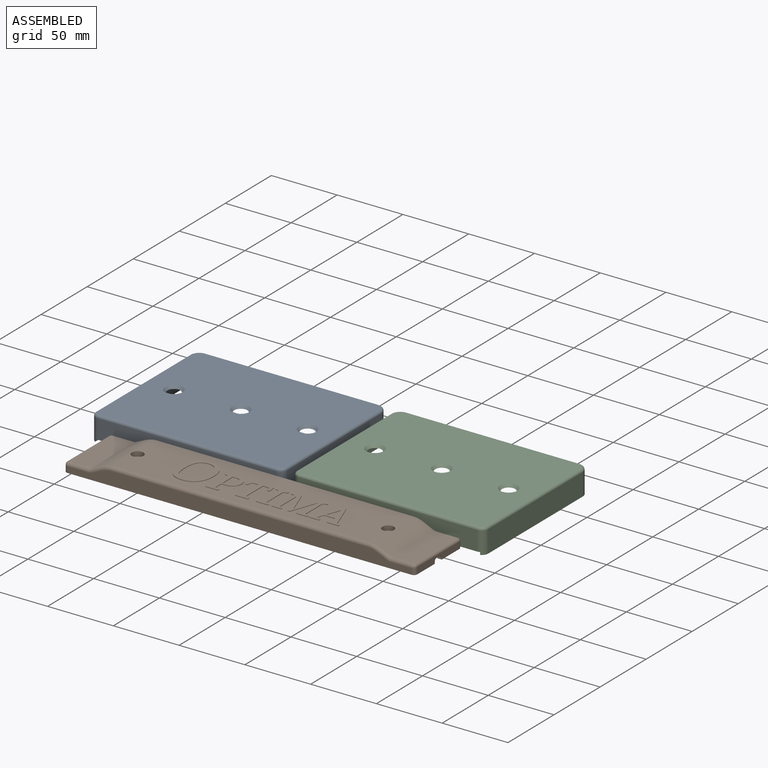
[diagram: assembled view]
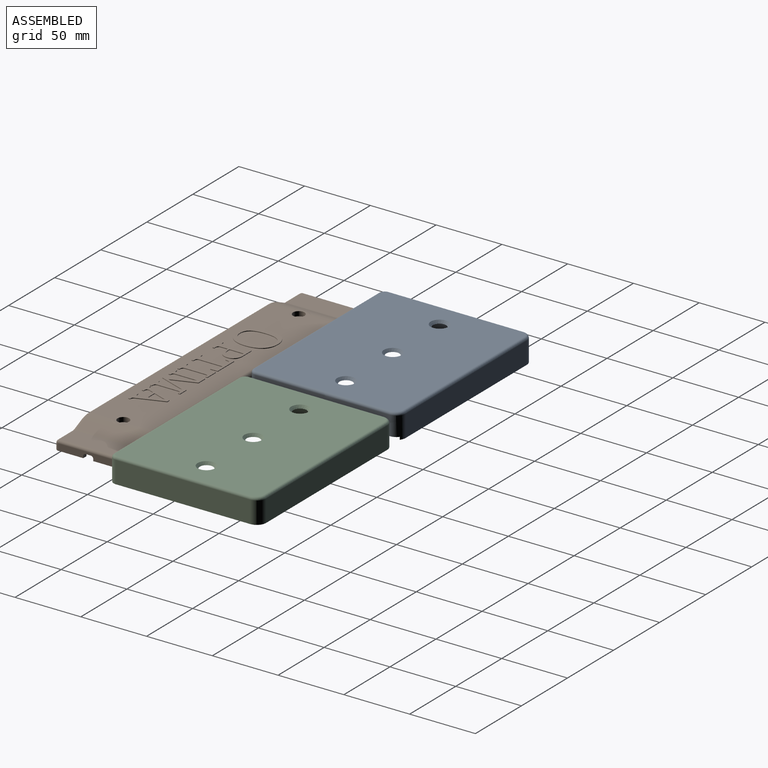
[diagram: assembled view, second angle]
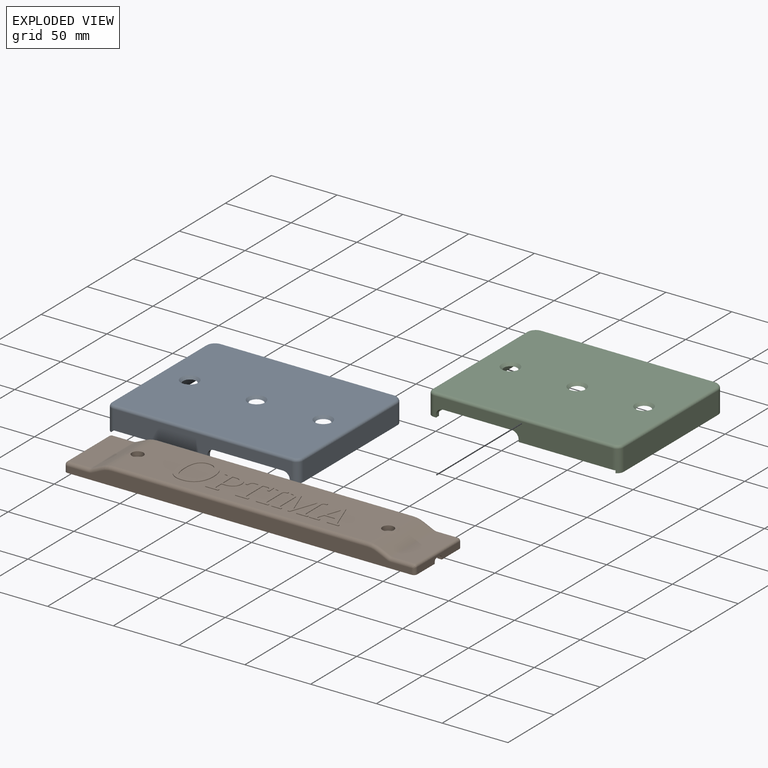
[diagram: exploded view]
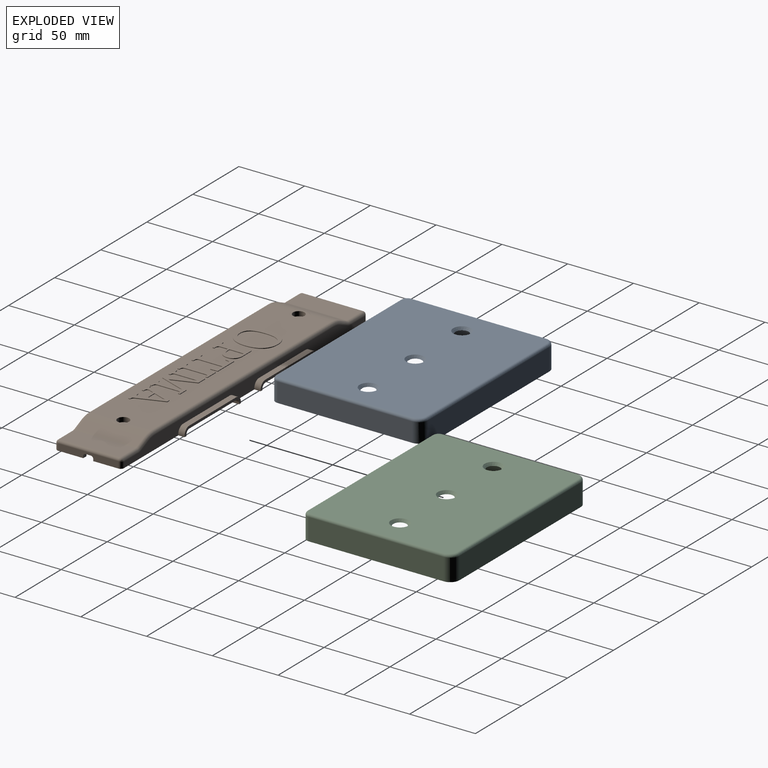
[diagram: exploded view, second angle]
ASSEMBLY  parts=3 mates=2
PART A: 46 faces, bbox 146.9x115.5x18.7 mm
  f0: plane 142.7x113mm, normal (0,0,-1), area 571.8mm2, adj f2,f4,f5,f9,f10,f13,f14,f15
  f1: plane 129.7x12.67mm, normal (0,1,0), area 1234.3mm2, adj f2,f8,f19,f23,f24,f25,f26,f34
  f2: cylinder r=5mm len=12.67mm, axis (0,0,1), area 93.4mm2, adj f0,f1,f14,f22,f24,f33
  f3: plane 102.39x16.67mm, normal (-1,0,0), area 1706.7mm2, adj f11,f18,f21,f40
  f4: plane 135.7x14.67mm, normal (0,-1,0), area 1575.8mm2, adj f0,f8,f20,f21,f22,f23,f24,f25
  f5: plane 102.39x14.67mm, normal (1,0,0), area 1501.9mm2, adj f0,f17,f20,f37
  f6: plane 131.48x16.67mm, normal (0,1,0), area 2191.5mm2, adj f11,f17,f18,f36
  f7: plane 141.7x110.5mm, normal (0,0,1), area 15214.2mm2, adj f35,f36,f37,f38,f39,f40,f41,f42
  f8: plane 73.41x8mm, normal (0,0,-1), area 225.3mm2, adj f1,f4,f10,f19,f21,f26
  f9: plane 139.96x2mm, normal (0,-1,0), area 279.9mm2, adj f0,f10,f11,f17
  f10: plane 112.58x14.67mm, normal (1,0,0), area 1455.9mm2, adj f0,f8,f9,f11,f15,f19,f21,f30
  f11: plane 142.96x114.08mm, normal (0,0,-1), area 535.4mm2, adj f3,f6,f9,f10,f17,f18,f21
  f12: plane 135.7x104.5mm, normal (0,0,-1), area 13932.6mm2, adj f27,f28,f29,f30,f31,f32,f33,f34
  f13: plane 127x12.67mm, normal (0,-1,0), area 1608.9mm2, adj f0,f15,f16,f27
  f14: plane 97.15x12.67mm, normal (-1,0,0), area 1230.8mm2, adj f0,f2,f16,f31
  f15: cylinder r=6.35mm len=12.67mm, axis (0,0,-1), area 126.4mm2, adj f0,f10,f13,f28
  f16: cylinder r=6.35mm len=12.67mm, axis (0,0,1), area 126.4mm2, adj f0,f13,f14,f29
  f17: cylinder r=7.11mm len=16.67mm, axis (0,0,-1), area 173.3mm2, adj f0,f5,f6,f9,f11,f35
  f18: cylinder r=7.11mm len=16.67mm, axis (0,0,1), area 186.2mm2, adj f3,f6,f11,f38
  f19: cylinder r=5mm len=12.67mm, axis (0,0,-1), area 99.5mm2, adj f1,f8,f10,f32
  f20: cylinder r=5mm len=14.67mm, axis (0,0,-1), area 115.2mm2, adj f0,f4,f5,f39
  f21: cylinder r=5mm len=16.67mm, axis (0,0,1), area 126.8mm2, adj f3,f4,f8,f10,f11,f42
  f22: plane 3.21x1.71mm, normal (-1,0,0), area 5.5mm2, adj f0,f2,f4,f24
  f23: cylinder r=5.08mm len=5.08mm, axis (0,-1,0), area 23.9mm2, adj f1,f4,f25,f26
  f24: cylinder r=5.08mm len=5.08mm, axis (0,-1,0), area 24.4mm2, adj f1,f2,f4,f22,f25
  f25: plane 52.58x3mm, normal (0,0,-1), area 157.7mm2, adj f1,f4,f23,f24
  f26: plane 3x1.71mm, normal (1,0,0), area 5.1mm2, adj f1,f4,f8,f23
  f27: cylinder r=2mm len=127mm, axis (-1,0,0), area 399mm2, adj f12,f13,f28,f29
  f28: torus R=4.35mm, axis (0,0,1), area 27.7mm2, adj f12,f15,f27,f30
  f29: torus R=4.35mm, axis (0,0,1), area 27.7mm2, adj f12,f16,f27,f31
  f30: cylinder r=2mm len=97.15mm, axis (0,1,0), area 305.2mm2, adj f10,f12,f28,f32
  f31: cylinder r=2mm len=97.15mm, axis (0,1,0), area 305.2mm2, adj f12,f14,f29,f33
  f32: torus R=3mm, axis (0,0,1), area 21.1mm2, adj f12,f19,f30,f34
  f33: torus R=3mm, axis (0,0,1), area 21.1mm2, adj f2,f12,f31,f34
  f34: cylinder r=2mm len=129.7mm, axis (1,0,0), area 407.5mm2, adj f1,f12,f32,f33
  f35: torus R=5.11mm, axis (0,0,1), area 31.5mm2, adj f7,f17,f36,f37
  f36: cylinder r=2mm len=131.48mm, axis (1,0,0), area 413mm2, adj f6,f7,f35,f38
  f37: cylinder r=2mm len=102.39mm, axis (0,-1,0), area 321.7mm2, adj f5,f7,f35,f39
  f38: torus R=5.11mm, axis (0,0,1), area 31.5mm2, adj f7,f18,f36,f40
  f39: torus R=3mm, axis (0,0,1), area 21.1mm2, adj f7,f20,f37,f41
  f40: cylinder r=2mm len=102.39mm, axis (0,1,0), area 321.7mm2, adj f3,f7,f38,f42
  f41: cylinder r=2mm len=135.7mm, axis (-1,0,0), area 426.3mm2, adj f4,f7,f39,f42
  f42: torus R=3mm, axis (0,0,1), area 21.1mm2, adj f7,f21,f40,f41
  f43: cone r=3.38mm half-angle=41deg, axis (0,0,1), area 97.8mm2, adj f7,f12
  f44: cone r=3.38mm half-angle=41deg, axis (0,0,1), area 97.8mm2, adj f7,f12
  f45: cone r=3.38mm half-angle=41deg, axis (0,0,1), area 97.8mm2, adj f7,f12
PART B: 334 faces, bbox 270.1x59x17.8 mm
  f0: plane 63.5x26.35mm, normal (0,0,-1), area 293.7mm2, adj f2,f3,f6,f32,f44,f73,f316,f317
  f1: plane 25.4x8.26mm, normal (0,0,-1), area 107.9mm2, adj f2,f3,f312,f321,f322,f323,f332,f333
  f2: plane 259.7x9.2mm, normal (0,-1,0), area 1687.1mm2, adj f0,f1,f5,f9,f23,f24,f25,f26
  f3: plane 261.62x10.16mm, normal (0,1,0), area 1677.2mm2, adj f0,f1,f5,f44,f46,f47,f48,f49
  f4: plane 203.28x49.12mm, normal (0,0,1), area 7292.1mm2, adj f8,f12,f37,f38,f41,f43,f50,f63
  f5: plane 63.5x26.35mm, normal (0,0,-1), area 293.7mm2, adj f2,f3,f17,f33,f56,f75,f327,f328
  f6: plane 45.72x5mm, normal (-1,0,0), area 204.9mm2, adj f0,f11,f16,f44,f57,f70,f71,f72
  f7: cylinder r=2.29mm len=9.18mm, axis (0,0,1), area 131.9mm2, adj f39,f42
  f8: cylinder r=20mm len=45.72mm, axis (0,1,0), area 337.4mm2, adj f4,f21,f43,f51,f64
  f9: cylinder r=20mm len=43.8mm, axis (0,1,0), area 321mm2, adj f2,f23,f26,f31,f40
  f10: cylinder r=2.29mm len=9.18mm, axis (0,0,1), area 131.9mm2, adj f34,f36
  f11: plane 266.7x21.59mm, normal (0,0,-1), area 1057.3mm2, adj f6,f17,f22,f31,f32,f33,f57,f69
  f12: cylinder r=20mm len=45.72mm, axis (0,1,0), area 337.4mm2, adj f4,f13,f38,f49,f62
  f13: plane 45.72x7.49mm, normal (-0.42,0,0.91), area 376.6mm2, adj f12,f14,f48,f61
  f14: cylinder r=5mm len=45.72mm, axis (0,1,0), area 98.2mm2, adj f13,f15,f47,f60
  f15: plane 45.72x16.21mm, normal (0,0,1), area 741.3mm2, adj f14,f16,f46,f59
  f16: cylinder r=2mm len=45.72mm, axis (0,1,0), area 143.6mm2, adj f6,f15,f45,f58
  f17: plane 45.72x5mm, normal (1,0,0), area 204.9mm2, adj f5,f11,f18,f56,f69,f75,f76,f77
  f18: cylinder r=2mm len=45.72mm, axis (0,1,0), area 143.6mm2, adj f17,f19,f55,f68
  f19: plane 45.72x16.21mm, normal (0,0,1), area 741.3mm2, adj f18,f20,f54,f67
  f20: cylinder r=5mm len=45.72mm, axis (0,1,0), area 98.2mm2, adj f19,f21,f53,f66
  f21: plane 45.72x7.49mm, normal (0.42,0,0.91), area 376.6mm2, adj f8,f20,f52,f65
  f22: plane 261.62x10.16mm, normal (0,-1,0), area 2388mm2, adj f11,f57,f59,f60,f61,f62,f63,f64
  f23: plane 194.48x43.8mm, normal (0,0,-1), area 8294.1mm2, adj f2,f9,f24,f31,f35,f40
  f24: cylinder r=20mm len=43.8mm, axis (0,1,0), area 321mm2, adj f2,f23,f25,f31,f35
  f25: plane 43.8x7.49mm, normal (0.42,0,-0.91), area 360.8mm2, adj f2,f24,f27,f31
  f26: plane 43.8x7.49mm, normal (-0.42,0,-0.91), area 360.8mm2, adj f2,f9,f28,f31
  f27: cylinder r=5mm len=43.8mm, axis (0,1,0), area 94.1mm2, adj f2,f25,f29,f31
  f28: cylinder r=5mm len=43.8mm, axis (0,1,0), area 94.1mm2, adj f2,f26,f30,f31
  f29: plane 43.8x14.71mm, normal (0,0,-1), area 644.5mm2, adj f2,f27,f31,f32
  f30: plane 43.8x14.71mm, normal (0,0,-1), area 644.5mm2, adj f2,f28,f31,f33
  f31: plane 259.7x9.2mm, normal (0,1,0), area 2135.6mm2, adj f9,f11,f23,f24,f25,f26,f27,f28
  f32: plane 43.8x3.5mm, normal (1,0,0), area 129.6mm2, adj f0,f2,f11,f29,f31,f70,f71,f72
  f33: plane 43.8x3.5mm, normal (-1,0,0), area 129.6mm2, adj f2,f5,f11,f30,f31,f75,f76,f77
  f34: plane 14.57x14.57mm, normal (0,0,-1), area 150.4mm2, adj f10,f35
  f35: cylinder r=7.29mm len=14.57mm, axis (0,0,1), area 421.2mm2, adj f23,f24,f34
  f36: plane 8.76x8.76mm, normal (0,0,1), area 43.9mm2, adj f10,f37
  f37: cylinder r=4.38mm len=8.76mm, axis (0,0,1), area 96.9mm2, adj f4,f36
  f38: bspline ~14.02x5.3mm, area 0mm2, adj f4,f12
  f39: plane 14.57x14.57mm, normal (0,0,-1), area 150.4mm2, adj f7,f40
  f40: cylinder r=7.29mm len=14.57mm, axis (0,0,1), area 421.2mm2, adj f9,f23,f39
  f41: cylinder r=4.38mm len=8.76mm, axis (0,0,1), area 96.9mm2, adj f4,f42
  f42: plane 8.76x8.76mm, normal (0,0,1), area 43.9mm2, adj f7,f41
  f43: bspline ~14.02x5.31mm, area 0mm2, adj f4,f8
  f44: cylinder r=2.54mm len=5mm, axis (0,0,-1), area 18.9mm2, adj f0,f3,f6,f45
  f45: bspline ~2.69x2.54mm, area 5.5mm2, adj f16,f44,f46
  f46: cylinder r=2.54mm len=16.21mm, axis (-1,0,0), area 63.6mm2, adj f3,f15,f45,f47
  f47: torus R=7.54mm, axis (0,-1,0), area 10.1mm2, adj f3,f14,f46,f48
  f48: cylinder r=2.54mm len=8.55mm, axis (-0.91,0,-0.42), area 32.9mm2, adj f3,f13,f47,f49
  f49: torus R=17.46mm, axis (0,-1,0), area 32.7mm2, adj f3,f12,f48,f50
  f50: cylinder r=2.54mm len=194.48mm, axis (-1,0,0), area 775.9mm2, adj f3,f4,f49,f51
  f51: torus R=17.46mm, axis (0,-1,0), area 32.7mm2, adj f3,f8,f50,f52
  f52: cylinder r=2.54mm len=8.55mm, axis (-0.91,0,0.42), area 32.9mm2, adj f3,f21,f51,f53
  f53: torus R=7.54mm, axis (0,-1,0), area 10.1mm2, adj f3,f20,f52,f54
  f54: cylinder r=2.54mm len=16.21mm, axis (-1,0,0), area 63.6mm2, adj f3,f19,f53,f55
  f55: bspline ~2.69x2.54mm, area 5.5mm2, adj f18,f54,f56
  f56: cylinder r=2.54mm len=5mm, axis (0,0,1), area 18.9mm2, adj f3,f5,f17,f55
  f57: cylinder r=2.54mm len=5mm, axis (0,0,1), area 18.9mm2, adj f6,f11,f22,f58
  f58: bspline ~2.69x2.54mm, area 5.5mm2, adj f16,f57,f59
  f59: cylinder r=2.54mm len=16.21mm, axis (1,0,0), area 63.6mm2, adj f15,f22,f58,f60
  f60: torus R=7.54mm, axis (0,-1,0), area 10.1mm2, adj f14,f22,f59,f61
  f61: cylinder r=2.54mm len=8.55mm, axis (0.91,0,0.42), area 32.9mm2, adj f13,f22,f60,f62
  f62: torus R=17.46mm, axis (0,-1,0), area 32.7mm2, adj f12,f22,f61,f63
  f63: cylinder r=2.54mm len=194.48mm, axis (1,0,0), area 775.9mm2, adj f4,f22,f62,f64
  f64: torus R=17.46mm, axis (0,-1,0), area 32.7mm2, adj f8,f22,f63,f65
  f65: cylinder r=2.54mm len=8.55mm, axis (0.91,0,-0.42), area 32.9mm2, adj f21,f22,f64,f66
  f66: torus R=7.54mm, axis (0,-1,0), area 10.1mm2, adj f20,f22,f65,f67
  f67: cylinder r=2.54mm len=16.21mm, axis (1,0,0), area 63.6mm2, adj f19,f22,f66,f68
  f68: bspline ~2.69x2.54mm, area 5.5mm2, adj f18,f67,f69
  f69: cylinder r=2.54mm len=5mm, axis (0,0,-1), area 18.9mm2, adj f11,f17,f22,f68
  f70: plane 3.5x1.43mm, normal (0,1,0), area 5mm2, adj f6,f11,f32,f71
  f71: cylinder r=1.87mm len=3.5mm, axis (-1,0,0), area 10.3mm2, adj f6,f32,f70,f72
  f72: plane 3.88x3.5mm, normal (0,0,-1), area 13.6mm2, adj f6,f32,f71,f74
  f73: plane 3.5x1.43mm, normal (0,-1,0), area 5mm2, adj f0,f6,f32,f74
  f74: cylinder r=1.87mm len=3.5mm, axis (-1,0,0), area 10.3mm2, adj f6,f32,f72,f73
  f75: plane 3.5x1.43mm, normal (0,-1,0), area 5mm2, adj f5,f17,f33,f76
  f76: cylinder r=1.87mm len=3.5mm, axis (1,0,0), area 10.3mm2, adj f17,f33,f75,f77
  f77: plane 3.88x3.5mm, normal (0,0,-1), area 13.6mm2, adj f17,f33,f76,f78
  f78: cylinder r=1.87mm len=3.5mm, axis (1,0,0), area 10.3mm2, adj f17,f33,f77,f79
  f79: plane 3.5x1.43mm, normal (0,1,0), area 5mm2, adj f11,f17,f33,f78
  f80: extruded ~5.61x0.5mm, area 2.8mm2, adj f81,f111,f112,f113
  f81: extruded ~5.61x0.5mm, area 2.8mm2, adj f80,f82,f112,f113
  f82: extruded ~4.16x1.51mm, area 2.2mm2, adj f81,f83,f112,f113
  f83: extruded ~2.7x2.58mm, area 1.9mm2, adj f82,f84,f112,f113
  f84: extruded ~4.01x0.89mm, area 2.1mm2, adj f83,f85,f112,f113
  f85: extruded ~3.98x0.89mm, area 2.1mm2, adj f84,f86,f112,f113
  f86: extruded ~2.65x2.58mm, area 1.9mm2, adj f85,f87,f112,f113
  f87: extruded ~4.16x1.48mm, area 2.2mm2, adj f86,f88,f112,f113
  f88: extruded ~5.61x0.5mm, area 2.8mm2, adj f87,f89,f112,f113
  f89: extruded ~5.61x0.5mm, area 2.8mm2, adj f88,f90,f112,f113
  f90: extruded ~4.18x1.48mm, area 2.2mm2, adj f89,f91,f112,f113
  f91: extruded ~2.67x2.61mm, area 1.9mm2, adj f90,f92,f112,f113
  f92: extruded ~4x0.9mm, area 2.1mm2, adj f91,f93,f112,f113
  f93: extruded ~4x0.9mm, area 2.1mm2, adj f92,f94,f112,f113
  f94: extruded ~2.68x2.61mm, area 1.9mm2, adj f93,f111,f112,f113
  f95: extruded ~6.37x0.87mm, area 3.2mm2, adj f4,f96,f110,f112
  f96: extruded ~6.4x0.87mm, area 3.2mm2, adj f4,f95,f97,f112
  f97: extruded ~4.9x2.56mm, area 2.8mm2, adj f4,f96,f98,f112
  f98: extruded ~4.15x3.14mm, area 2.6mm2, adj f4,f97,f99,f112
  f99: extruded ~5.67x1.11mm, area 2.9mm2, adj f4,f98,f100,f112
  f100: extruded ~5.89x1.11mm, area 3mm2, adj f4,f99,f101,f112
  f101: extruded ~4.18x3.13mm, area 2.6mm2, adj f4,f100,f102,f112
  f102: extruded ~4.89x2.48mm, area 2.8mm2, adj f4,f101,f103,f112
  f103: extruded ~6.38x0.83mm, area 3.2mm2, adj f4,f102,f104,f112
  f104: extruded ~6.4x0.83mm, area 3.2mm2, adj f4,f103,f105,f112
  f105: extruded ~4.93x2.48mm, area 2.8mm2, adj f4,f104,f106,f112
  f106: extruded ~4.16x3.17mm, area 2.6mm2, adj f4,f105,f107,f112
  f107: extruded ~5.87x1.12mm, area 3mm2, adj f4,f106,f108,f112
  f108: extruded ~5.68x1.12mm, area 2.9mm2, adj f4,f107,f109,f112
  f109: extruded ~4.18x3.17mm, area 2.6mm2, adj f4,f108,f110,f112
  f110: extruded ~4.92x2.56mm, area 2.8mm2, adj f4,f95,f109,f112
  f111: extruded ~4.18x1.5mm, area 2.2mm2, adj f80,f94,f112,f113
  f112: plane 31.12x26.62mm, normal (0,0,1), area 294.2mm2, adj f80,f81,f82,f83,f84,f85,f86,f87
  f113: plane 26.54x17.24mm, normal (0,0,1), area 384.1mm2, adj f80,f81,f82,f83,f84,f85,f86,f87
  f114: plane 1.69x0.5mm, normal (0,1,0), area 0.8mm2, adj f115,f155,f156,f157
  f115: plane 10.82x0.5mm, normal (1,0,0), area 5.4mm2, adj f114,f116,f156,f157
  f116: plane 2.15x0.5mm, normal (0,-1,0), area 1.1mm2, adj f115,f117,f156,f157
  f117: extruded ~2.29x0.5mm, area 1.2mm2, adj f116,f118,f156,f157
  f118: extruded ~1.53x0.97mm, area 0.9mm2, adj f117,f119,f156,f157
  f119: extruded ~1.63x0.85mm, area 0.9mm2, adj f118,f120,f156,f157
  f120: extruded ~2.32x0.5mm, area 1.2mm2, adj f119,f121,f156,f157
  f121: extruded ~2.57x0.5mm, area 1.3mm2, adj f120,f122,f156,f157
  f122: extruded ~1.74x0.95mm, area 1mm2, adj f121,f123,f156,f157
  f123: extruded ~1.67x0.98mm, area 1mm2, adj f122,f155,f156,f157
  f124: plane 1.33x0.5mm, normal (-1,0,0), area 0.7mm2, adj f4,f125,f154,f156
  f125: plane 9.87x0.5mm, normal (0,-1,0), area 4.9mm2, adj f4,f124,f126,f156
  f126: plane 1.33x0.5mm, normal (1,0,0), area 0.7mm2, adj f4,f125,f127,f156
  f127: plane 1.05x0.5mm, normal (0,1,0), area 0.5mm2, adj f4,f126,f128,f156
  f128: extruded ~1x0.5mm, area 0.5mm2, adj f4,f127,f129,f156
  f129: extruded ~0.83x0.5mm, area 0.4mm2, adj f4,f128,f130,f156
  f130: extruded ~0.64x0.57mm, area 0.4mm2, adj f4,f129,f131,f156
  f131: extruded ~1.13x0.5mm, area 0.6mm2, adj f4,f130,f132,f156
  f132: plane 5.36x0.5mm, normal (1,0,0), area 2.7mm2, adj f4,f131,f133,f156
  f133: plane 2x0.5mm, normal (0,-1,0), area 1mm2, adj f4,f132,f134,f156
  f134: extruded ~3.98x0.6mm, area 2mm2, adj f4,f133,f135,f156
  f135: extruded ~2.64x1.6mm, area 1.6mm2, adj f4,f134,f136,f156
  f136: extruded ~2.3x1.45mm, area 1.4mm2, adj f4,f135,f137,f156
  f137: extruded ~2.71x0.5mm, area 1.4mm2, adj f4,f136,f138,f156
  f138: extruded ~2.78x0.5mm, area 1.4mm2, adj f4,f137,f139,f156
  f139: extruded ~2.08x1.43mm, area 1.3mm2, adj f4,f138,f140,f156
  f140: extruded ~2.43x1.32mm, area 1.4mm2, adj f4,f139,f141,f156
  f141: extruded ~3.47x0.5mm, area 1.8mm2, adj f4,f140,f142,f156
  f142: plane 8.92x0.5mm, normal (0,1,0), area 4.5mm2, adj f4,f141,f143,f156
  f143: plane 1.33x0.5mm, normal (-1,0,0), area 0.7mm2, adj f4,f142,f144,f156
  f144: plane 0.5x0.4mm, normal (0,-1,0), area 0.2mm2, adj f4,f143,f145,f156
  f145: extruded ~1x0.5mm, area 0.5mm2, adj f4,f144,f146,f156
  f146: extruded ~0.83x0.5mm, area 0.4mm2, adj f4,f145,f147,f156
  f147: extruded ~0.66x0.57mm, area 0.4mm2, adj f4,f146,f148,f156
  f148: extruded ~1.12x0.5mm, area 0.6mm2, adj f4,f147,f149,f156
  f149: plane 15.57x0.5mm, normal (-1,0,0), area 7.8mm2, adj f4,f148,f150,f156
  f150: extruded ~1.19x0.5mm, area 0.6mm2, adj f4,f149,f151,f156
  f151: extruded ~0.69x0.56mm, area 0.4mm2, adj f4,f150,f152,f156
  f152: extruded ~0.83x0.5mm, area 0.4mm2, adj f4,f151,f153,f156
  f153: extruded ~1.01x0.5mm, area 0.5mm2, adj f4,f152,f154,f156
  f154: plane 0.5x0.4mm, normal (0,1,0), area 0.2mm2, adj f4,f124,f153,f156
  f155: extruded ~2.46x0.5mm, area 1.2mm2, adj f114,f123,f156,f157
  f156: plane 22.67x16.73mm, normal (0,0,1), area 145.4mm2, adj f114,f115,f116,f117,f118,f119,f120,f121
  f157: plane 10.82x7.08mm, normal (0,0,1), area 68.3mm2, adj f114,f115,f116,f117,f118,f119,f120,f121
  f158: extruded ~1.19x0.5mm, area 0.6mm2, adj f4,f159,f189,f190
  f159: plane 17.47x0.5mm, normal (1,0,0), area 8.7mm2, adj f4,f158,f160,f190
  f160: plane 3.09x0.5mm, normal (0,-1,0), area 1.5mm2, adj f4,f159,f161,f190
  f161: extruded ~1.2x0.5mm, area 0.6mm2, adj f4,f160,f162,f190
  f162: extruded ~0.77x0.57mm, area 0.5mm2, adj f4,f161,f163,f190
  f163: extruded ~0.83x0.5mm, area 0.5mm2, adj f4,f162,f164,f190
  f164: extruded ~1x0.5mm, area 0.5mm2, adj f4,f163,f165,f190
  f165: plane 1.36x0.5mm, normal (-0.99,-0.12,0), area 0.7mm2, adj f4,f164,f166,f190
  f166: plane 1.64x0.5mm, normal (0,-1,0), area 0.8mm2, adj f4,f165,f167,f190
  f167: plane 5.55x0.5mm, normal (1,0.03,0), area 2.8mm2, adj f4,f166,f168,f190
  f168: plane 17.88x0.5mm, normal (0,1,0), area 8.9mm2, adj f4,f167,f169,f190
  f169: plane 5.55x0.5mm, normal (-1,0.03,0), area 2.8mm2, adj f4,f168,f170,f190
  f170: plane 1.64x0.5mm, normal (0,-1,0), area 0.8mm2, adj f4,f169,f171,f190
  f171: plane 1.36x0.5mm, normal (0.99,-0.13,0), area 0.7mm2, adj f4,f170,f172,f190
  f172: extruded ~1x0.5mm, area 0.5mm2, adj f4,f171,f173,f190
  f173: extruded ~0.83x0.5mm, area 0.5mm2, adj f4,f172,f174,f190
  f174: extruded ~0.77x0.57mm, area 0.5mm2, adj f4,f173,f175,f190
  f175: extruded ~1.17x0.5mm, area 0.6mm2, adj f4,f174,f176,f190
  f176: plane 3.04x0.5mm, normal (0,-1,0), area 1.5mm2, adj f4,f175,f177,f190
  f177: plane 17.63x0.5mm, normal (-1,0,0), area 8.8mm2, adj f4,f176,f178,f190
  f178: extruded ~1.13x0.5mm, area 0.6mm2, adj f4,f177,f179,f190
  f179: extruded ~0.64x0.57mm, area 0.4mm2, adj f4,f178,f180,f190
  f180: extruded ~0.83x0.5mm, area 0.4mm2, adj f4,f179,f181,f190
  f181: extruded ~1x0.5mm, area 0.5mm2, adj f4,f180,f182,f190
  f182: plane 0.73x0.5mm, normal (0,1,0), area 0.4mm2, adj f4,f181,f183,f190
  f183: plane 1.33x0.5mm, normal (-1,0,0), area 0.7mm2, adj f4,f182,f184,f190
  f184: plane 9.88x0.5mm, normal (0,-1,0), area 4.9mm2, adj f4,f183,f185,f190
  f185: plane 1.33x0.5mm, normal (1,0,0), area 0.7mm2, adj f4,f184,f186,f190
  f186: plane 0.73x0.5mm, normal (0,1,0), area 0.4mm2, adj f4,f185,f187,f190
  f187: extruded ~1.01x0.5mm, area 0.5mm2, adj f4,f186,f188,f190
  f188: extruded ~0.83x0.5mm, area 0.4mm2, adj f4,f187,f189,f190
  f189: extruded ~0.69x0.56mm, area 0.4mm2, adj f4,f158,f188,f190
  f190: plane 22.67x18.19mm, normal (0,0,1), area 123mm2, adj f158,f159,f160,f161,f162,f163,f164,f165
  f191: plane 1.33x0.5mm, normal (-1,0,0), area 0.7mm2, adj f4,f192,f218,f219
  f192: plane 9.24x0.5mm, normal (0,-1,0), area 4.6mm2, adj f4,f191,f193,f219
  f193: plane 1.33x0.5mm, normal (1,0,0), area 0.7mm2, adj f4,f192,f194,f219
  f194: plane 0.5x0.42mm, normal (0,1,0), area 0.2mm2, adj f4,f193,f195,f219
  f195: extruded ~1.01x0.5mm, area 0.5mm2, adj f4,f194,f196,f219
  f196: extruded ~0.83x0.5mm, area 0.4mm2, adj f4,f195,f197,f219
  f197: extruded ~0.69x0.56mm, area 0.4mm2, adj f4,f196,f198,f219
  f198: extruded ~1.19x0.5mm, area 0.6mm2, adj f4,f197,f199,f219
  f199: plane 15.44x0.5mm, normal (1,0,0), area 7.7mm2, adj f4,f198,f200,f219
  f200: extruded ~1.19x0.5mm, area 0.6mm2, adj f4,f199,f201,f219
  f201: extruded ~0.69x0.56mm, area 0.4mm2, adj f4,f200,f202,f219
  f202: extruded ~0.83x0.5mm, area 0.4mm2, adj f4,f201,f203,f219
  f203: extruded ~1.01x0.5mm, area 0.5mm2, adj f4,f202,f204,f219
  f204: plane 0.5x0.42mm, normal (0,-1,0), area 0.2mm2, adj f4,f203,f205,f219
  f205: plane 1.33x0.5mm, normal (1,0,0), area 0.7mm2, adj f4,f204,f206,f219
  f206: plane 9.24x0.5mm, normal (0,1,0), area 4.6mm2, adj f4,f205,f207,f219
  f207: plane 1.33x0.5mm, normal (-1,0,0), area 0.7mm2, adj f4,f206,f208,f219
  f208: plane 0.5x0.4mm, normal (0,-1,0), area 0.2mm2, adj f4,f207,f209,f219
  f209: extruded ~1.01x0.5mm, area 0.5mm2, adj f4,f208,f210,f219
  f210: extruded ~0.83x0.5mm, area 0.4mm2, adj f4,f209,f211,f219
  f211: extruded ~0.69x0.56mm, area 0.4mm2, adj f4,f210,f212,f219
  f212: extruded ~1.19x0.5mm, area 0.6mm2, adj f4,f211,f213,f219
  f213: plane 15.44x0.5mm, normal (-1,0,0), area 7.7mm2, adj f4,f212,f214,f219
  f214: extruded ~1.19x0.5mm, area 0.6mm2, adj f4,f213,f215,f219
  f215: extruded ~0.69x0.56mm, area 0.4mm2, adj f4,f214,f216,f219
  f216: extruded ~0.83x0.5mm, area 0.4mm2, adj f4,f215,f217,f219
  f217: extruded ~1.01x0.5mm, area 0.5mm2, adj f4,f216,f218,f219
  f218: plane 0.5x0.4mm, normal (0,1,0), area 0.2mm2, adj f4,f191,f217,f219
  f219: plane 22.67x9.24mm, normal (0,0,1), area 92.3mm2, adj f191,f192,f193,f194,f195,f196,f197,f198
  f220: plane 1.33x0.5mm, normal (-1,0,0), area 0.7mm2, adj f4,f221,f268,f269
  f221: plane 8.45x0.5mm, normal (0,-1,0), area 4.2mm2, adj f4,f220,f222,f269
  f222: plane 1.33x0.5mm, normal (1,0,0), area 0.7mm2, adj f4,f221,f223,f269
  f223: plane 0.5x0.4mm, normal (0,1,0), area 0.2mm2, adj f4,f222,f224,f269
  f224: extruded ~1.01x0.5mm, area 0.5mm2, adj f4,f223,f225,f269
  f225: extruded ~0.83x0.5mm, area 0.4mm2, adj f4,f224,f226,f269
  f226: extruded ~0.69x0.56mm, area 0.4mm2, adj f4,f225,f227,f269
  f227: extruded ~1.19x0.5mm, area 0.6mm2, adj f4,f226,f228,f269
  f228: plane 15.44x0.5mm, normal (1,0,0), area 7.7mm2, adj f4,f227,f229,f269
  f229: extruded ~1.19x0.5mm, area 0.6mm2, adj f4,f228,f230,f269
  f230: extruded ~0.69x0.56mm, area 0.4mm2, adj f4,f229,f231,f269
  f231: extruded ~0.83x0.5mm, area 0.4mm2, adj f4,f230,f232,f269
  f232: extruded ~1.01x0.5mm, area 0.5mm2, adj f4,f231,f233,f269
  f233: plane 0.5x0.4mm, normal (0,-1,0), area 0.2mm2, adj f4,f232,f234,f269
  f234: plane 1.33x0.5mm, normal (1,0,0), area 0.7mm2, adj f4,f233,f235,f269
  f235: plane 7.03x0.5mm, normal (0,1,0), area 3.5mm2, adj f4,f234,f236,f269
  f236: plane 18.16x6.51mm, normal (-0.94,0.34,0), area 9.6mm2, adj f4,f235,f237,f269
  f237: plane 18.16x6.57mm, normal (0.94,0.34,0), area 9.7mm2, adj f4,f236,f238,f269
  f238: plane 7.24x0.5mm, normal (0,1,0), area 3.6mm2, adj f4,f237,f239,f269
  f239: plane 1.33x0.5mm, normal (-1,0,0), area 0.7mm2, adj f4,f238,f240,f269
  f240: plane 0.5x0.4mm, normal (0,-1,0), area 0.2mm2, adj f4,f239,f241,f269
  f241: extruded ~1x0.5mm, area 0.5mm2, adj f4,f240,f242,f269
  f242: extruded ~0.83x0.5mm, area 0.4mm2, adj f4,f241,f243,f269
  f243: extruded ~0.66x0.57mm, area 0.4mm2, adj f4,f242,f244,f269
  f244: extruded ~1.12x0.5mm, area 0.6mm2, adj f4,f243,f245,f269
  f245: plane 15.72x0.5mm, normal (-1,0,0), area 7.9mm2, adj f4,f244,f246,f269
  f246: extruded ~1.13x0.5mm, area 0.6mm2, adj f4,f245,f247,f269
  f247: extruded ~0.64x0.57mm, area 0.4mm2, adj f4,f246,f248,f269
  f248: extruded ~0.83x0.5mm, area 0.4mm2, adj f4,f247,f249,f269
  f249: extruded ~1x0.5mm, area 0.5mm2, adj f4,f248,f250,f269
  f250: plane 0.5x0.4mm, normal (0,1,0), area 0.2mm2, adj f4,f249,f251,f269
  f251: plane 1.33x0.5mm, normal (-1,0,0), area 0.7mm2, adj f4,f250,f252,f269
  f252: plane 7.33x0.5mm, normal (0,-1,0), area 3.7mm2, adj f4,f251,f253,f269
  f253: plane 1.33x0.5mm, normal (1,0,0), area 0.7mm2, adj f4,f252,f254,f269
  f254: plane 0.5x0.09mm, normal (0,1,0), area 0mm2, adj f4,f253,f255,f269
  f255: extruded ~0.95x0.5mm, area 0.5mm2, adj f4,f254,f256,f269
  f256: extruded ~0.73x0.5mm, area 0.4mm2, adj f4,f255,f257,f269
  f257: extruded ~0.69x0.5mm, area 0.4mm2, adj f4,f256,f258,f269
  f258: extruded ~1.19x0.5mm, area 0.6mm2, adj f4,f257,f259,f269
  f259: plane 16.62x0.5mm, normal (1,0,0), area 8.3mm2, adj f4,f258,f260,f269
  f260: plane 20.23x7.36mm, normal (-0.94,-0.34,0), area 10.8mm2, adj f4,f259,f261,f269
  f261: plane 1.72x0.5mm, normal (0,-1,0), area 0.9mm2, adj f4,f260,f262,f269
  f262: plane 20.3x7.27mm, normal (0.94,-0.34,0), area 10.8mm2, adj f4,f261,f263,f269
  f263: plane 16.96x0.5mm, normal (-1,0,0), area 8.5mm2, adj f4,f262,f264,f269
  f264: extruded ~1.05x0.5mm, area 0.5mm2, adj f4,f263,f265,f269
  f265: extruded ~0.61x0.5mm, area 0.4mm2, adj f4,f264,f266,f269
  f266: extruded ~0.7x0.5mm, area 0.4mm2, adj f4,f265,f267,f269
  f267: extruded ~0.92x0.5mm, area 0.5mm2, adj f4,f266,f268,f269
  f268: plane 0.5x0.11mm, normal (0,1,0), area 0.1mm2, adj f4,f220,f267,f269
  f269: plane 27.36x22.67mm, normal (0,0,1), area 243.9mm2, adj f220,f221,f222,f223,f224,f225,f226,f227
  f270: extruded ~2.64x0.91mm, area 1.4mm2, adj f271,f309,f310,f311
  f271: plane 5.55x1.96mm, normal (-0.94,-0.33,0), area 2.9mm2, adj f270,f272,f310,f311
  f272: plane 7.16x0.5mm, normal (0,1,0), area 3.6mm2, adj f271,f273,f310,f311
  f273: plane 5.84x2.15mm, normal (0.94,-0.35,0), area 3.1mm2, adj f272,f274,f310,f311
  f274: extruded ~1.36x0.5mm, area 0.7mm2, adj f273,f275,f310,f311
  f275: extruded ~1.17x0.5mm, area 0.6mm2, adj f274,f276,f310,f311
  f276: extruded ~1.09x0.5mm, area 0.6mm2, adj f275,f277,f310,f311
  f277: extruded ~1.11x0.5mm, area 0.6mm2, adj f276,f309,f310,f311
  f278: plane 3.33x1.21mm, normal (0.94,-0.34,0), area 1.8mm2, adj f4,f279,f308,f310
  f279: plane 8.34x0.5mm, normal (0,-1,0), area 4.2mm2, adj f4,f278,f280,f310
  f280: plane 3.55x1.27mm, normal (-0.94,-0.34,0), area 1.9mm2, adj f4,f279,f281,f310
  f281: extruded ~0.64x0.5mm, area 0.3mm2, adj f4,f280,f282,f310
  f282: extruded ~0.54x0.5mm, area 0.3mm2, adj f4,f281,f283,f310
  f283: extruded ~1.91x1.52mm, area 1.4mm2, adj f4,f282,f284,f310
  f284: plane 0.73x0.5mm, normal (0,1,0), area 0.4mm2, adj f4,f283,f285,f310
  f285: plane 1.33x0.5mm, normal (-1,0,0), area 0.7mm2, adj f4,f284,f286,f310
  f286: plane 8.73x0.5mm, normal (0,-1,0), area 4.4mm2, adj f4,f285,f287,f310
  f287: plane 1.33x0.5mm, normal (1,0,0), area 0.7mm2, adj f4,f286,f288,f310
  f288: plane 0.5x0.42mm, normal (0,1,0), area 0.2mm2, adj f4,f287,f289,f310
  f289: extruded ~0.81x0.5mm, area 0.4mm2, adj f4,f288,f290,f310
  f290: extruded ~0.6x0.5mm, area 0.3mm2, adj f4,f289,f291,f310
  f291: extruded ~0.52x0.5mm, area 0.3mm2, adj f4,f290,f292,f310
  f292: extruded ~0.82x0.5mm, area 0.5mm2, adj f4,f291,f293,f310
  f293: plane 19.65x7.18mm, normal (0.94,0.34,0), area 10.5mm2, adj f4,f292,f294,f310
  f294: plane 2.48x0.5mm, normal (0,1,0), area 1.2mm2, adj f4,f293,f295,f310
  f295: plane 18.85x7.04mm, normal (-0.94,0.35,0), area 10.1mm2, adj f4,f294,f296,f310
  f296: extruded ~1.24x0.53mm, area 0.7mm2, adj f4,f295,f297,f310
  f297: extruded ~0.76x0.5mm, area 0.5mm2, adj f4,f296,f298,f310
  f298: extruded ~0.59x0.5mm, area 0.4mm2, adj f4,f297,f299,f310
  f299: extruded ~0.79x0.5mm, area 0.4mm2, adj f4,f298,f300,f310
  f300: plane 0.61x0.5mm, normal (0,1,0), area 0.3mm2, adj f4,f299,f301,f310
  f301: plane 1.33x0.5mm, normal (-1,0,0), area 0.7mm2, adj f4,f300,f302,f310
  f302: plane 7.75x0.5mm, normal (0,-1,0), area 3.9mm2, adj f4,f301,f303,f310
  f303: plane 1.33x0.5mm, normal (1,0,0), area 0.7mm2, adj f4,f302,f304,f310
  f304: plane 0.73x0.5mm, normal (0,1,0), area 0.4mm2, adj f4,f303,f305,f310
  f305: extruded ~1.59x0.5mm, area 0.8mm2, adj f4,f304,f306,f310
  f306: extruded ~1.18x0.52mm, area 0.7mm2, adj f4,f305,f307,f310
  f307: extruded ~0.63x0.5mm, area 0.3mm2, adj f4,f306,f308,f310
  f308: extruded ~0.74x0.5mm, area 0.4mm2, adj f4,f278,f307,f310
  f309: extruded ~2.38x0.67mm, area 1.2mm2, adj f270,f277,f310,f311
  f310: plane 22.67x22.39mm, normal (0,0,1), area 144.3mm2, adj f270,f271,f272,f273,f274,f275,f276,f277
  f311: plane 10.57x7.16mm, normal (0,0,1), area 35.9mm2, adj f270,f271,f272,f273,f274,f275,f276,f277
  f312: plane 8.26x0.83mm, normal (-1,0,0), area 6.8mm2, adj f1,f2,f313,f322
  f313: cylinder r=3.17mm len=8.26mm, axis (0,-1,0), area 41.2mm2, adj f2,f312,f314,f322
  f314: plane 50.8x8.26mm, normal (0,0,-1), area 419.7mm2, adj f2,f313,f315,f322
  f315: cylinder r=3.17mm len=8.26mm, axis (0,-1,0), area 41.2mm2, adj f2,f314,f316,f322
  f316: plane 8.26x0.83mm, normal (1,0,0), area 6.8mm2, adj f0,f2,f315,f322
  f317: plane 4.76x0.83mm, normal (-1,0,0), area 3.9mm2, adj f0,f3,f318,f322
  f318: cylinder r=5.17mm len=5.18mm, axis (0,-1,0), area 38.7mm2, adj f3,f317,f319,f322
  f319: plane 50.8x4.76mm, normal (0,0,1), area 241.9mm2, adj f3,f318,f320,f322
  f320: cylinder r=5.17mm len=5.18mm, axis (0,-1,0), area 38.7mm2, adj f3,f319,f321,f322
  f321: plane 4.76x0.83mm, normal (1,0,0), area 3.9mm2, adj f1,f3,f320,f322
  f322: plane 61.15x6mm, normal (0,1,0), area 131.1mm2, adj f0,f1,f312,f313,f314,f315,f316,f317
  f323: plane 4.76x0.83mm, normal (-1,0,0), area 3.9mm2, adj f1,f3,f324,f333
  f324: cylinder r=5.17mm len=5.18mm, axis (0,-1,0), area 38.7mm2, adj f3,f323,f325,f333
  f325: plane 50.8x4.76mm, normal (0,0,1), area 241.9mm2, adj f3,f324,f326,f333
  f326: cylinder r=5.17mm len=5.18mm, axis (0,-1,0), area 38.7mm2, adj f3,f325,f327,f333
  f327: plane 4.76x0.83mm, normal (1,0,0), area 3.9mm2, adj f3,f5,f326,f333
  f328: plane 8.26x0.83mm, normal (-1,0,0), area 6.8mm2, adj f2,f5,f329,f333
  f329: cylinder r=3.17mm len=8.26mm, axis (0,-1,0), area 41.2mm2, adj f2,f328,f330,f333
  f330: plane 50.8x8.26mm, normal (0,0,-1), area 419.7mm2, adj f2,f329,f331,f333
  f331: cylinder r=3.17mm len=8.26mm, axis (0,-1,0), area 41.2mm2, adj f2,f330,f332,f333
  f332: plane 8.26x0.83mm, normal (1,0,0), area 6.8mm2, adj f1,f2,f331,f333
  f333: plane 61.15x6mm, normal (0,1,0), area 131.1mm2, adj f1,f5,f323,f324,f325,f326,f327,f328
PART C: 46 faces, bbox 146.9x115.5x18.7 mm
  f0: plane 73.41x8mm, normal (0,0,-1), area 225.3mm2, adj f1,f6,f9,f19,f21,f22
  f1: plane 129.7x12.67mm, normal (0,1,0), area 1234.3mm2, adj f0,f2,f19,f22,f23,f24,f25,f34
  f2: cylinder r=5mm len=12.67mm, axis (0,0,-1), area 93.4mm2, adj f1,f3,f13,f23,f26,f32
  f3: plane 142.7x113mm, normal (0,0,-1), area 571.8mm2, adj f2,f5,f6,f9,f10,f13,f14,f15
  f4: plane 131.48x16.67mm, normal (0,1,0), area 2191.5mm2, adj f11,f17,f18,f37
  f5: plane 102.39x14.67mm, normal (-1,0,0), area 1501.9mm2, adj f3,f17,f20,f36
  f6: plane 135.7x14.67mm, normal (0,-1,0), area 1575.8mm2, adj f0,f3,f20,f21,f22,f23,f24,f25
  f7: plane 102.39x16.67mm, normal (1,0,0), area 1706.7mm2, adj f11,f18,f21,f41
  f8: plane 141.7x110.5mm, normal (0,0,1), area 15214.2mm2, adj f35,f36,f37,f38,f39,f40,f41,f42
  f9: plane 112.58x14.67mm, normal (-1,0,0), area 1455.9mm2, adj f0,f3,f10,f11,f16,f19,f21,f31
  f10: plane 139.96x2mm, normal (0,-1,0), area 279.9mm2, adj f3,f9,f11,f17
  f11: plane 142.96x114.08mm, normal (0,0,-1), area 535.4mm2, adj f4,f7,f9,f10,f17,f18,f21
  f12: plane 135.7x104.5mm, normal (0,0,-1), area 13932.6mm2, adj f27,f28,f29,f30,f31,f32,f33,f34
  f13: plane 97.15x12.67mm, normal (1,0,0), area 1230.8mm2, adj f2,f3,f15,f30
  f14: plane 127x12.67mm, normal (0,-1,0), area 1608.9mm2, adj f3,f15,f16,f27
  f15: cylinder r=6.35mm len=12.67mm, axis (0,0,-1), area 126.4mm2, adj f3,f13,f14,f28
  f16: cylinder r=6.35mm len=12.67mm, axis (0,0,-1), area 126.4mm2, adj f3,f9,f14,f29
  f17: cylinder r=7.11mm len=16.67mm, axis (0,0,1), area 173.3mm2, adj f3,f4,f5,f10,f11,f35
  f18: cylinder r=7.11mm len=16.67mm, axis (0,0,-1), area 186.2mm2, adj f4,f7,f11,f39
  f19: cylinder r=5mm len=12.67mm, axis (0,0,-1), area 99.5mm2, adj f0,f1,f9,f33
  f20: cylinder r=5mm len=14.67mm, axis (0,0,1), area 115.2mm2, adj f3,f5,f6,f38
  f21: cylinder r=5mm len=16.67mm, axis (0,0,-1), area 126.8mm2, adj f0,f6,f7,f9,f11,f42
  f22: plane 3x1.71mm, normal (-1,0,0), area 5.1mm2, adj f0,f1,f6,f24
  f23: cylinder r=5.08mm len=5.08mm, axis (0,-1,0), area 24.4mm2, adj f1,f2,f6,f25,f26
  f24: cylinder r=5.08mm len=5.08mm, axis (0,-1,0), area 23.9mm2, adj f1,f6,f22,f25
  f25: plane 52.58x3mm, normal (0,0,-1), area 157.7mm2, adj f1,f6,f23,f24
  f26: plane 3.21x1.71mm, normal (1,0,0), area 5.5mm2, adj f2,f3,f6,f23
  f27: cylinder r=2mm len=127mm, axis (-1,0,0), area 399mm2, adj f12,f14,f28,f29
  f28: torus R=4.35mm, axis (0,0,1), area 27.7mm2, adj f12,f15,f27,f30
  f29: torus R=4.35mm, axis (0,0,1), area 27.7mm2, adj f12,f16,f27,f31
  f30: cylinder r=2mm len=97.15mm, axis (0,-1,0), area 305.2mm2, adj f12,f13,f28,f32
  f31: cylinder r=2mm len=97.15mm, axis (0,-1,0), area 305.2mm2, adj f9,f12,f29,f33
  f32: torus R=3mm, axis (0,0,1), area 21.1mm2, adj f2,f12,f30,f34
  f33: torus R=3mm, axis (0,0,1), area 21.1mm2, adj f12,f19,f31,f34
  f34: cylinder r=2mm len=129.7mm, axis (1,0,0), area 407.5mm2, adj f1,f12,f32,f33
  f35: torus R=5.11mm, axis (0,0,1), area 31.5mm2, adj f8,f17,f36,f37
  f36: cylinder r=2mm len=102.39mm, axis (0,1,0), area 321.7mm2, adj f5,f8,f35,f38
  f37: cylinder r=2mm len=131.48mm, axis (1,0,0), area 413mm2, adj f4,f8,f35,f39
  f38: torus R=3mm, axis (0,0,1), area 21.1mm2, adj f8,f20,f36,f40
  f39: torus R=5.11mm, axis (0,0,1), area 31.5mm2, adj f8,f18,f37,f41
  f40: cylinder r=2mm len=135.7mm, axis (-1,0,0), area 426.3mm2, adj f6,f8,f38,f42
  f41: cylinder r=2mm len=102.39mm, axis (0,-1,0), area 321.7mm2, adj f7,f8,f39,f42
  f42: torus R=3mm, axis (0,0,1), area 21.1mm2, adj f8,f21,f40,f41
  f43: cone r=3.38mm half-angle=41deg, axis (0,0,1), area 97.8mm2, adj f8,f12
  f44: cone r=3.38mm half-angle=41deg, axis (0,0,1), area 97.8mm2, adj f8,f12
  f45: cone r=3.38mm half-angle=41deg, axis (0,0,1), area 97.8mm2, adj f8,f12
PLACE A t=(-88.69,64.41,-17.39)mm
PLACE B t=(-12.49,-19.76,-16.99)mm fixed
PLACE C t=(63.71,65.03,-17.39)mm
MATE slider B.f322 <-> A.f4  axis (0,1,0) through (-53.76,10.4,-10.99)mm
MATE slider C.f6 <-> B.f333  axis (0,-1,0) through (28.79,7.03,-10.6)mm
